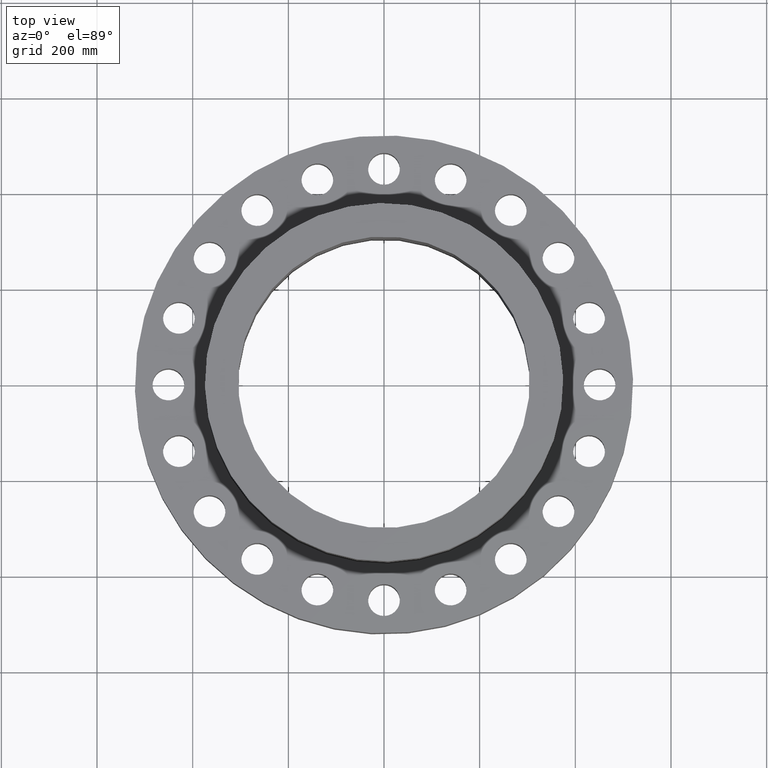
[diagram: clean part render]
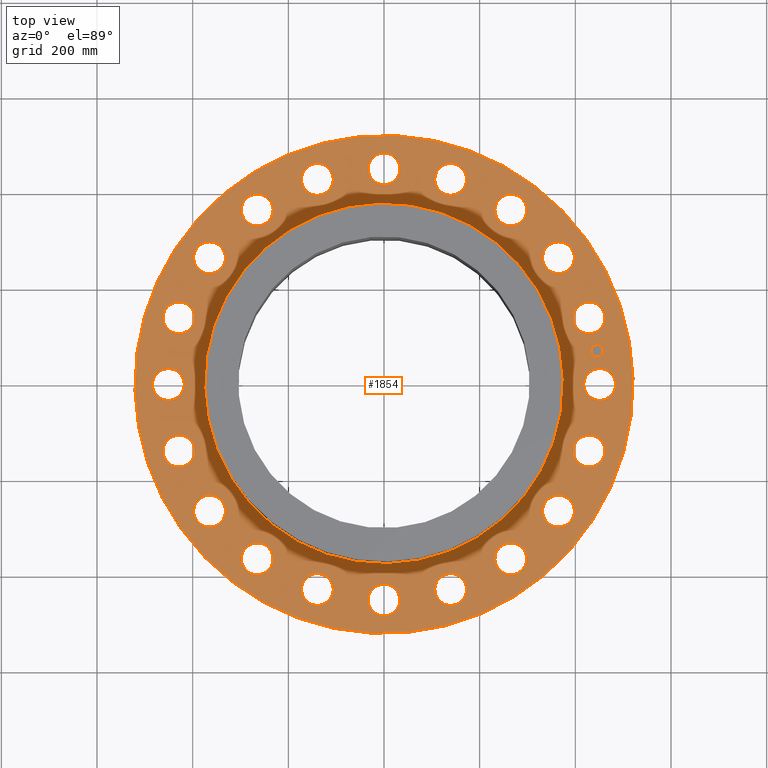
[diagram: same view with one face highlighted and labeled with its STEP entity id]
A machine part, top view. The second image highlights one B-rep face of the part: STEP entity #1854.
In plain terms, the highlighted planar face has unit normal (0, 0, -1).
Its self-contained STEP definition (entity closure, byte-faithful):
#51=AXIS2_PLACEMENT_3D('Circle Axis2P3D',#49,#50,$) ;
#470=AXIS2_PLACEMENT_3D('Circle Axis2P3D',#468,#469,$) ;
#494=AXIS2_PLACEMENT_3D('Circle Axis2P3D',#492,#493,$) ;
#513=AXIS2_PLACEMENT_3D('Circle Axis2P3D',#511,#512,$) ;
#530=AXIS2_PLACEMENT_3D('Circle Axis2P3D',#528,#529,$) ;
#565=AXIS2_PLACEMENT_3D('Circle Axis2P3D',#563,#564,$) ;
#940=AXIS2_PLACEMENT_3D('Circle Axis2P3D',#938,#939,$) ;
#959=AXIS2_PLACEMENT_3D('Circle Axis2P3D',#957,#958,$) ;
#983=AXIS2_PLACEMENT_3D('Circle Axis2P3D',#981,#982,$) ;
#1002=AXIS2_PLACEMENT_3D('Circle Axis2P3D',#1000,#1001,$) ;
#1026=AXIS2_PLACEMENT_3D('Circle Axis2P3D',#1024,#1025,$) ;
#1045=AXIS2_PLACEMENT_3D('Circle Axis2P3D',#1043,#1044,$) ;
#1069=AXIS2_PLACEMENT_3D('Circle Axis2P3D',#1067,#1068,$) ;
#1088=AXIS2_PLACEMENT_3D('Circle Axis2P3D',#1086,#1087,$) ;
#1112=AXIS2_PLACEMENT_3D('Circle Axis2P3D',#1110,#1111,$) ;
#1131=AXIS2_PLACEMENT_3D('Circle Axis2P3D',#1129,#1130,$) ;
#1155=AXIS2_PLACEMENT_3D('Circle Axis2P3D',#1153,#1154,$) ;
#1174=AXIS2_PLACEMENT_3D('Circle Axis2P3D',#1172,#1173,$) ;
#1198=AXIS2_PLACEMENT_3D('Circle Axis2P3D',#1196,#1197,$) ;
#1217=AXIS2_PLACEMENT_3D('Circle Axis2P3D',#1215,#1216,$) ;
#1241=AXIS2_PLACEMENT_3D('Circle Axis2P3D',#1239,#1240,$) ;
#1260=AXIS2_PLACEMENT_3D('Circle Axis2P3D',#1258,#1259,$) ;
#1284=AXIS2_PLACEMENT_3D('Circle Axis2P3D',#1282,#1283,$) ;
#1303=AXIS2_PLACEMENT_3D('Circle Axis2P3D',#1301,#1302,$) ;
#1327=AXIS2_PLACEMENT_3D('Circle Axis2P3D',#1325,#1326,$) ;
#1346=AXIS2_PLACEMENT_3D('Circle Axis2P3D',#1344,#1345,$) ;
#1370=AXIS2_PLACEMENT_3D('Circle Axis2P3D',#1368,#1369,$) ;
#1389=AXIS2_PLACEMENT_3D('Circle Axis2P3D',#1387,#1388,$) ;
#1413=AXIS2_PLACEMENT_3D('Circle Axis2P3D',#1411,#1412,$) ;
#1432=AXIS2_PLACEMENT_3D('Circle Axis2P3D',#1430,#1431,$) ;
#1456=AXIS2_PLACEMENT_3D('Circle Axis2P3D',#1454,#1455,$) ;
#1475=AXIS2_PLACEMENT_3D('Circle Axis2P3D',#1473,#1474,$) ;
#1499=AXIS2_PLACEMENT_3D('Circle Axis2P3D',#1497,#1498,$) ;
#1518=AXIS2_PLACEMENT_3D('Circle Axis2P3D',#1516,#1517,$) ;
#1542=AXIS2_PLACEMENT_3D('Circle Axis2P3D',#1540,#1541,$) ;
#1561=AXIS2_PLACEMENT_3D('Circle Axis2P3D',#1559,#1560,$) ;
#1585=AXIS2_PLACEMENT_3D('Circle Axis2P3D',#1583,#1584,$) ;
#1604=AXIS2_PLACEMENT_3D('Circle Axis2P3D',#1602,#1603,$) ;
#1628=AXIS2_PLACEMENT_3D('Circle Axis2P3D',#1626,#1627,$) ;
#1647=AXIS2_PLACEMENT_3D('Circle Axis2P3D',#1645,#1646,$) ;
#1671=AXIS2_PLACEMENT_3D('Circle Axis2P3D',#1669,#1670,$) ;
#1690=AXIS2_PLACEMENT_3D('Circle Axis2P3D',#1688,#1689,$) ;
#1714=AXIS2_PLACEMENT_3D('Circle Axis2P3D',#1712,#1713,$) ;
#1733=AXIS2_PLACEMENT_3D('Circle Axis2P3D',#1731,#1732,$) ;
#1746=AXIS2_PLACEMENT_3D('Plane Axis2P3D',#1743,#1744,#1745) ;
#1838=AXIS2_PLACEMENT_3D('Circle Axis2P3D',#1836,#1837,$) ;
#1847=AXIS2_PLACEMENT_3D('Circle Axis2P3D',#1845,#1846,$) ;
#44=CARTESIAN_POINT('Vertex',(16.600366844,-0.628047455574,5.50000000002)) ;
#49=CARTESIAN_POINT('Axis2P3D Location',(17.7500000001,0.,5.50000000002)) ;
#53=CARTESIAN_POINT('Vertex',(18.8996331562,0.628047455574,5.50000000002)) ;
#468=CARTESIAN_POINT('Axis2P3D Location',(17.7500000001,0.,5.50000000002)) ;
#489=CARTESIAN_POINT('Vertex',(-9.82822354143,-17.9904425188,5.50000000002)) ;
#492=CARTESIAN_POINT('Axis2P3D Location',(0.,0.,5.50000000002)) ;
#496=CARTESIAN_POINT('Vertex',(9.82822354143,17.9904425188,5.50000000002)) ;
#511=CARTESIAN_POINT('Axis2P3D Location',(0.,0.,5.50000000002)) ;
#528=CARTESIAN_POINT('Axis2P3D Location',(0.,0.,5.50000000002)) ;
#532=CARTESIAN_POINT('Vertex',(7.07152669444,12.9443427879,5.50000000002)) ;
#534=CARTESIAN_POINT('Vertex',(-7.07152669444,-12.9443427879,5.50000000002)) ;
#563=CARTESIAN_POINT('Axis2P3D Location',(0.,0.,5.50000000002)) ;
#935=CARTESIAN_POINT('Vertex',(15.5938097228,-5.72710409282,5.50000000002)) ;
#938=CARTESIAN_POINT('Axis2P3D Location',(16.8812531643,-5.48505165018,5.50000000002)) ;
#942=CARTESIAN_POINT('Vertex',(18.1686966058,-5.24299920754,5.50000000002)) ;
#957=CARTESIAN_POINT('Axis2P3D Location',(16.8812531643,-5.48505165018,5.50000000002)) ;
#978=CARTESIAN_POINT('Vertex',(13.0608218575,-10.2655518784,5.50000000002)) ;
#981=CARTESIAN_POINT('Axis2P3D Location',(14.3600516502,-10.4331882282,5.50000000002)) ;
#985=CARTESIAN_POINT('Vertex',(15.6592814429,-10.6008245781,5.50000000002)) ;
#1000=CARTESIAN_POINT('Axis2P3D Location',(14.3600516502,-10.4331882282,5.50000000002)) ;
#1021=CARTESIAN_POINT('Vertex',(9.24934974871,-13.7991359218,5.50000000002)) ;
#1024=CARTESIAN_POINT('Axis2P3D Location',(10.4331882282,-14.3600516502,5.50000000002)) ;
#1028=CARTESIAN_POINT('Vertex',(11.6170267078,-14.9209673787,5.50000000002)) ;
#1043=CARTESIAN_POINT('Axis2P3D Location',(10.4331882282,-14.3600516502,5.50000000002)) ;
#1064=CARTESIAN_POINT('Vertex',(4.53248684249,-15.9819643969,5.50000000002)) ;
#1067=CARTESIAN_POINT('Axis2P3D Location',(5.48505165018,-16.8812531643,5.50000000002)) ;
#1071=CARTESIAN_POINT('Vertex',(6.43761645787,-17.7805419317,5.50000000002)) ;
#1086=CARTESIAN_POINT('Axis2P3D Location',(5.48505165018,-16.8812531643,5.50000000002)) ;
#1107=CARTESIAN_POINT('Vertex',(-0.628047455574,-16.600366844,5.50000000002)) ;
#1110=CARTESIAN_POINT('Axis2P3D Location',(2.79023589527E-015,-17.7500000001,5.50000000002)) ;
#1114=CARTESIAN_POINT('Vertex',(0.628047455574,-18.8996331562,5.50000000002)) ;
#1129=CARTESIAN_POINT('Axis2P3D Location',(2.79023589527E-015,-17.7500000001,5.50000000002)) ;
#1150=CARTESIAN_POINT('Vertex',(-5.72710409282,-15.5938097228,5.50000000002)) ;
#1153=CARTESIAN_POINT('Axis2P3D Location',(-5.48505165018,-16.8812531643,5.50000000002)) ;
#1157=CARTESIAN_POINT('Vertex',(-5.24299920754,-18.1686966058,5.50000000002)) ;
#1172=CARTESIAN_POINT('Axis2P3D Location',(-5.48505165018,-16.8812531643,5.50000000002)) ;
#1193=CARTESIAN_POINT('Vertex',(-10.2655518784,-13.0608218575,5.50000000002)) ;
#1196=CARTESIAN_POINT('Axis2P3D Location',(-10.4331882282,-14.3600516502,5.50000000002)) ;
#1200=CARTESIAN_POINT('Vertex',(-10.6008245781,-15.6592814429,5.50000000002)) ;
#1215=CARTESIAN_POINT('Axis2P3D Location',(-10.4331882282,-14.3600516502,5.50000000002)) ;
#1236=CARTESIAN_POINT('Vertex',(-13.7991359218,-9.24934974871,5.50000000002)) ;
#1239=CARTESIAN_POINT('Axis2P3D Location',(-14.3600516502,-10.4331882282,5.50000000002)) ;
#1243=CARTESIAN_POINT('Vertex',(-14.9209673787,-11.6170267078,5.50000000002)) ;
#1258=CARTESIAN_POINT('Axis2P3D Location',(-14.3600516502,-10.4331882282,5.50000000002)) ;
#1279=CARTESIAN_POINT('Vertex',(-15.9819643969,-4.53248684249,5.50000000002)) ;
#1282=CARTESIAN_POINT('Axis2P3D Location',(-16.8812531643,-5.48505165018,5.50000000002)) ;
#1286=CARTESIAN_POINT('Vertex',(-17.7805419317,-6.43761645787,5.50000000002)) ;
#1301=CARTESIAN_POINT('Axis2P3D Location',(-16.8812531643,-5.48505165018,5.50000000002)) ;
#1322=CARTESIAN_POINT('Vertex',(-16.600366844,0.628047455574,5.50000000002)) ;
#1325=CARTESIAN_POINT('Axis2P3D Location',(-17.7500000001,-1.00563315434E-014,5.50000000002)) ;
#1329=CARTESIAN_POINT('Vertex',(-18.8996331562,-0.628047455574,5.50000000002)) ;
#1344=CARTESIAN_POINT('Axis2P3D Location',(-17.7500000001,-1.00563315434E-014,5.50000000002)) ;
#1365=CARTESIAN_POINT('Vertex',(-15.5938097228,5.72710409282,5.50000000002)) ;
#1368=CARTESIAN_POINT('Axis2P3D Location',(-16.8812531643,5.48505165018,5.50000000002)) ;
#1372=CARTESIAN_POINT('Vertex',(-18.1686966058,5.24299920754,5.50000000002)) ;
#1387=CARTESIAN_POINT('Axis2P3D Location',(-16.8812531643,5.48505165018,5.50000000002)) ;
#1408=CARTESIAN_POINT('Vertex',(-13.0608218575,10.2655518784,5.50000000002)) ;
#1411=CARTESIAN_POINT('Axis2P3D Location',(-14.3600516502,10.4331882282,5.50000000002)) ;
#1415=CARTESIAN_POINT('Vertex',(-15.6592814429,10.6008245781,5.50000000002)) ;
#1430=CARTESIAN_POINT('Axis2P3D Location',(-14.3600516502,10.4331882282,5.50000000002)) ;
#1451=CARTESIAN_POINT('Vertex',(-9.24934974871,13.7991359218,5.50000000002)) ;
#1454=CARTESIAN_POINT('Axis2P3D Location',(-10.4331882282,14.3600516502,5.50000000002)) ;
#1458=CARTESIAN_POINT('Vertex',(-11.6170267078,14.9209673787,5.50000000002)) ;
#1473=CARTESIAN_POINT('Axis2P3D Location',(-10.4331882282,14.3600516502,5.50000000002)) ;
#1494=CARTESIAN_POINT('Vertex',(-4.53248684249,15.9819643969,5.50000000002)) ;
#1497=CARTESIAN_POINT('Axis2P3D Location',(-5.48505165018,16.8812531643,5.50000000002)) ;
#1501=CARTESIAN_POINT('Vertex',(-6.43761645787,17.7805419317,5.50000000002)) ;
#1516=CARTESIAN_POINT('Axis2P3D Location',(-5.48505165018,16.8812531643,5.50000000002)) ;
#1537=CARTESIAN_POINT('Vertex',(0.628047455574,16.600366844,5.50000000002)) ;
#1540=CARTESIAN_POINT('Axis2P3D Location',(-1.90257890525E-014,17.7500000001,5.50000000002)) ;
#1544=CARTESIAN_POINT('Vertex',(-0.628047455574,18.8996331562,5.50000000002)) ;
#1559=CARTESIAN_POINT('Axis2P3D Location',(-1.90257890525E-014,17.7500000001,5.50000000002)) ;
#1580=CARTESIAN_POINT('Vertex',(5.72710409282,15.5938097228,5.50000000002)) ;
#1583=CARTESIAN_POINT('Axis2P3D Location',(5.48505165018,16.8812531643,5.50000000002)) ;
#1587=CARTESIAN_POINT('Vertex',(5.24299920754,18.1686966058,5.50000000002)) ;
#1602=CARTESIAN_POINT('Axis2P3D Location',(5.48505165018,16.8812531643,5.50000000002)) ;
#1623=CARTESIAN_POINT('Vertex',(10.2655518784,13.0608218575,5.50000000002)) ;
#1626=CARTESIAN_POINT('Axis2P3D Location',(10.4331882282,14.3600516502,5.50000000002)) ;
#1630=CARTESIAN_POINT('Vertex',(10.6008245781,15.6592814429,5.50000000002)) ;
#1645=CARTESIAN_POINT('Axis2P3D Location',(10.4331882282,14.3600516502,5.50000000002)) ;
#1666=CARTESIAN_POINT('Vertex',(13.7991359218,9.24934974871,5.50000000002)) ;
#1669=CARTESIAN_POINT('Axis2P3D Location',(14.3600516502,10.4331882282,5.50000000002)) ;
#1673=CARTESIAN_POINT('Vertex',(14.9209673787,11.6170267078,5.50000000002)) ;
#1688=CARTESIAN_POINT('Axis2P3D Location',(14.3600516502,10.4331882282,5.50000000002)) ;
#1709=CARTESIAN_POINT('Vertex',(15.9819643969,4.53248684249,5.50000000002)) ;
#1712=CARTESIAN_POINT('Axis2P3D Location',(16.8812531643,5.48505165018,5.50000000002)) ;
#1716=CARTESIAN_POINT('Vertex',(17.7805419317,6.43761645787,5.50000000002)) ;
#1731=CARTESIAN_POINT('Axis2P3D Location',(16.8812531643,5.48505165018,5.50000000002)) ;
#1743=CARTESIAN_POINT('Axis2P3D Location',(0.,20.5000000001,5.50000000002)) ;
#1836=CARTESIAN_POINT('Axis2P3D Location',(17.5314680456,2.77671175448,5.50000000002)) ;
#1840=CARTESIAN_POINT('Vertex',(17.6096852774,2.28286758911,5.50000000002)) ;
#1842=CARTESIAN_POINT('Vertex',(17.4532508139,3.27055591984,5.50000000002)) ;
#1845=CARTESIAN_POINT('Axis2P3D Location',(17.5314680456,2.77671175448,5.50000000002)) ;
#50=DIRECTION('Axis2P3D Direction',(0.,-0.,0.0393700787402)) ;
#469=DIRECTION('Axis2P3D Direction',(0.,-0.,0.0393700787402)) ;
#493=DIRECTION('Axis2P3D Direction',(0.,0.,-0.0393700787402)) ;
#512=DIRECTION('Axis2P3D Direction',(0.,0.,-0.0393700787402)) ;
#529=DIRECTION('Axis2P3D Direction',(0.,0.,-0.0393700787402)) ;
#564=DIRECTION('Axis2P3D Direction',(0.,0.,-0.0393700787402)) ;
#939=DIRECTION('Axis2P3D Direction',(-0.,0.,0.0393700787402)) ;
#958=DIRECTION('Axis2P3D Direction',(-0.,0.,0.0393700787402)) ;
#982=DIRECTION('Axis2P3D Direction',(-0.,0.,0.0393700787402)) ;
#1001=DIRECTION('Axis2P3D Direction',(-0.,0.,0.0393700787402)) ;
#1025=DIRECTION('Axis2P3D Direction',(-0.,0.,0.0393700787402)) ;
#1044=DIRECTION('Axis2P3D Direction',(-0.,0.,0.0393700787402)) ;
#1068=DIRECTION('Axis2P3D Direction',(-0.,0.,0.0393700787402)) ;
#1087=DIRECTION('Axis2P3D Direction',(-0.,0.,0.0393700787402)) ;
#1111=DIRECTION('Axis2P3D Direction',(-0.,0.,0.0393700787402)) ;
#1130=DIRECTION('Axis2P3D Direction',(-0.,0.,0.0393700787402)) ;
#1154=DIRECTION('Axis2P3D Direction',(0.,0.,0.0393700787402)) ;
#1173=DIRECTION('Axis2P3D Direction',(0.,0.,0.0393700787402)) ;
#1197=DIRECTION('Axis2P3D Direction',(0.,0.,0.0393700787402)) ;
#1216=DIRECTION('Axis2P3D Direction',(0.,0.,0.0393700787402)) ;
#1240=DIRECTION('Axis2P3D Direction',(0.,0.,0.0393700787402)) ;
#1259=DIRECTION('Axis2P3D Direction',(0.,0.,0.0393700787402)) ;
#1283=DIRECTION('Axis2P3D Direction',(0.,0.,0.0393700787402)) ;
#1302=DIRECTION('Axis2P3D Direction',(0.,0.,0.0393700787402)) ;
#1326=DIRECTION('Axis2P3D Direction',(0.,0.,0.0393700787402)) ;
#1345=DIRECTION('Axis2P3D Direction',(0.,0.,0.0393700787402)) ;
#1369=DIRECTION('Axis2P3D Direction',(0.,0.,0.0393700787402)) ;
#1388=DIRECTION('Axis2P3D Direction',(0.,0.,0.0393700787402)) ;
#1412=DIRECTION('Axis2P3D Direction',(0.,0.,0.0393700787402)) ;
#1431=DIRECTION('Axis2P3D Direction',(0.,0.,0.0393700787402)) ;
#1455=DIRECTION('Axis2P3D Direction',(0.,0.,0.0393700787402)) ;
#1474=DIRECTION('Axis2P3D Direction',(0.,0.,0.0393700787402)) ;
#1498=DIRECTION('Axis2P3D Direction',(0.,0.,0.0393700787402)) ;
#1517=DIRECTION('Axis2P3D Direction',(0.,0.,0.0393700787402)) ;
#1541=DIRECTION('Axis2P3D Direction',(0.,0.,0.0393700787402)) ;
#1560=DIRECTION('Axis2P3D Direction',(0.,0.,0.0393700787402)) ;
#1584=DIRECTION('Axis2P3D Direction',(0.,-0.,0.0393700787402)) ;
#1603=DIRECTION('Axis2P3D Direction',(0.,-0.,0.0393700787402)) ;
#1627=DIRECTION('Axis2P3D Direction',(0.,-0.,0.0393700787402)) ;
#1646=DIRECTION('Axis2P3D Direction',(0.,-0.,0.0393700787402)) ;
#1670=DIRECTION('Axis2P3D Direction',(0.,-0.,0.0393700787402)) ;
#1689=DIRECTION('Axis2P3D Direction',(0.,-0.,0.0393700787402)) ;
#1713=DIRECTION('Axis2P3D Direction',(0.,-0.,0.0393700787402)) ;
#1732=DIRECTION('Axis2P3D Direction',(0.,-0.,0.0393700787402)) ;
#1744=DIRECTION('Axis2P3D Direction',(0.,0.,-0.0393700787402)) ;
#1745=DIRECTION('Axis2P3D XDirection',(0.0393700787402,0.,0.)) ;
#1837=DIRECTION('Axis2P3D Direction',(0.,0.,-0.0393700787402)) ;
#1846=DIRECTION('Axis2P3D Direction',(0.,0.,-0.0393700787402)) ;
#1749=ORIENTED_EDGE('',*,*,#515,.F.) ;
#1750=ORIENTED_EDGE('',*,*,#498,.F.) ;
#1753=ORIENTED_EDGE('',*,*,#55,.T.) ;
#1754=ORIENTED_EDGE('',*,*,#472,.T.) ;
#1757=ORIENTED_EDGE('',*,*,#567,.T.) ;
#1758=ORIENTED_EDGE('',*,*,#536,.T.) ;
#1761=ORIENTED_EDGE('',*,*,#961,.T.) ;
#1762=ORIENTED_EDGE('',*,*,#944,.T.) ;
#1765=ORIENTED_EDGE('',*,*,#1004,.T.) ;
#1766=ORIENTED_EDGE('',*,*,#987,.T.) ;
#1769=ORIENTED_EDGE('',*,*,#1047,.T.) ;
#1770=ORIENTED_EDGE('',*,*,#1030,.T.) ;
#1773=ORIENTED_EDGE('',*,*,#1090,.T.) ;
#1774=ORIENTED_EDGE('',*,*,#1073,.T.) ;
#1777=ORIENTED_EDGE('',*,*,#1133,.T.) ;
#1778=ORIENTED_EDGE('',*,*,#1116,.T.) ;
#1781=ORIENTED_EDGE('',*,*,#1176,.T.) ;
#1782=ORIENTED_EDGE('',*,*,#1159,.T.) ;
#1785=ORIENTED_EDGE('',*,*,#1219,.T.) ;
#1786=ORIENTED_EDGE('',*,*,#1202,.T.) ;
#1789=ORIENTED_EDGE('',*,*,#1262,.T.) ;
#1790=ORIENTED_EDGE('',*,*,#1245,.T.) ;
#1793=ORIENTED_EDGE('',*,*,#1305,.T.) ;
#1794=ORIENTED_EDGE('',*,*,#1288,.T.) ;
#1797=ORIENTED_EDGE('',*,*,#1348,.T.) ;
#1798=ORIENTED_EDGE('',*,*,#1331,.T.) ;
#1801=ORIENTED_EDGE('',*,*,#1391,.T.) ;
#1802=ORIENTED_EDGE('',*,*,#1374,.T.) ;
#1805=ORIENTED_EDGE('',*,*,#1434,.T.) ;
#1806=ORIENTED_EDGE('',*,*,#1417,.T.) ;
#1809=ORIENTED_EDGE('',*,*,#1477,.T.) ;
#1810=ORIENTED_EDGE('',*,*,#1460,.T.) ;
#1813=ORIENTED_EDGE('',*,*,#1520,.T.) ;
#1814=ORIENTED_EDGE('',*,*,#1503,.T.) ;
#1817=ORIENTED_EDGE('',*,*,#1563,.T.) ;
#1818=ORIENTED_EDGE('',*,*,#1546,.T.) ;
#1821=ORIENTED_EDGE('',*,*,#1606,.T.) ;
#1822=ORIENTED_EDGE('',*,*,#1589,.T.) ;
#1825=ORIENTED_EDGE('',*,*,#1649,.T.) ;
#1826=ORIENTED_EDGE('',*,*,#1632,.T.) ;
#1829=ORIENTED_EDGE('',*,*,#1692,.T.) ;
#1830=ORIENTED_EDGE('',*,*,#1675,.T.) ;
#1833=ORIENTED_EDGE('',*,*,#1735,.T.) ;
#1834=ORIENTED_EDGE('',*,*,#1718,.T.) ;
#1851=ORIENTED_EDGE('',*,*,#1844,.F.) ;
#1852=ORIENTED_EDGE('',*,*,#1849,.F.) ;
#1755=FACE_BOUND('',#1752,.T.) ;
#1759=FACE_BOUND('',#1756,.T.) ;
#1763=FACE_BOUND('',#1760,.T.) ;
#1767=FACE_BOUND('',#1764,.T.) ;
#1771=FACE_BOUND('',#1768,.T.) ;
#1775=FACE_BOUND('',#1772,.T.) ;
#1779=FACE_BOUND('',#1776,.T.) ;
#1783=FACE_BOUND('',#1780,.T.) ;
#1787=FACE_BOUND('',#1784,.T.) ;
#1791=FACE_BOUND('',#1788,.T.) ;
#1795=FACE_BOUND('',#1792,.T.) ;
#1799=FACE_BOUND('',#1796,.T.) ;
#1803=FACE_BOUND('',#1800,.T.) ;
#1807=FACE_BOUND('',#1804,.T.) ;
#1811=FACE_BOUND('',#1808,.T.) ;
#1815=FACE_BOUND('',#1812,.T.) ;
#1819=FACE_BOUND('',#1816,.T.) ;
#1823=FACE_BOUND('',#1820,.T.) ;
#1827=FACE_BOUND('',#1824,.T.) ;
#1831=FACE_BOUND('',#1828,.T.) ;
#1835=FACE_BOUND('',#1832,.T.) ;
#1853=FACE_BOUND('',#1850,.T.) ;
#1854=ADVANCED_FACE('PartBody',(#1751,#1755,#1759,#1763,#1767,#1771,#1775,#1779,#1783,#1787,#1791,#1795,#1799,#1803,#1807,#1811,#1815,#1819,#1823,#1827,#1831,#1835,#1853),#1747,.F.) ;
#52=CIRCLE('generated circle',#51,1.31000000001) ;
#471=CIRCLE('generated circle',#470,1.31000000001) ;
#495=CIRCLE('generated circle',#494,20.5000000001) ;
#514=CIRCLE('generated circle',#513,20.5000000001) ;
#531=CIRCLE('generated circle',#530,14.7500000001) ;
#566=CIRCLE('generated circle',#565,14.7500000001) ;
#941=CIRCLE('generated circle',#940,1.31000000001) ;
#960=CIRCLE('generated circle',#959,1.31000000001) ;
#984=CIRCLE('generated circle',#983,1.31000000001) ;
#1003=CIRCLE('generated circle',#1002,1.31000000001) ;
#1027=CIRCLE('generated circle',#1026,1.31000000001) ;
#1046=CIRCLE('generated circle',#1045,1.31000000001) ;
#1070=CIRCLE('generated circle',#1069,1.31000000001) ;
#1089=CIRCLE('generated circle',#1088,1.31000000001) ;
#1113=CIRCLE('generated circle',#1112,1.31000000001) ;
#1132=CIRCLE('generated circle',#1131,1.31000000001) ;
#1156=CIRCLE('generated circle',#1155,1.31000000001) ;
#1175=CIRCLE('generated circle',#1174,1.31000000001) ;
#1199=CIRCLE('generated circle',#1198,1.31000000001) ;
#1218=CIRCLE('generated circle',#1217,1.31000000001) ;
#1242=CIRCLE('generated circle',#1241,1.31000000001) ;
#1261=CIRCLE('generated circle',#1260,1.31000000001) ;
#1285=CIRCLE('generated circle',#1284,1.31000000001) ;
#1304=CIRCLE('generated circle',#1303,1.31000000001) ;
#1328=CIRCLE('generated circle',#1327,1.31000000001) ;
#1347=CIRCLE('generated circle',#1346,1.31000000001) ;
#1371=CIRCLE('generated circle',#1370,1.31000000001) ;
#1390=CIRCLE('generated circle',#1389,1.31000000001) ;
#1414=CIRCLE('generated circle',#1413,1.31000000001) ;
#1433=CIRCLE('generated circle',#1432,1.31000000001) ;
#1457=CIRCLE('generated circle',#1456,1.31000000001) ;
#1476=CIRCLE('generated circle',#1475,1.31000000001) ;
#1500=CIRCLE('generated circle',#1499,1.31000000001) ;
#1519=CIRCLE('generated circle',#1518,1.31000000001) ;
#1543=CIRCLE('generated circle',#1542,1.31000000001) ;
#1562=CIRCLE('generated circle',#1561,1.31000000001) ;
#1586=CIRCLE('generated circle',#1585,1.31000000001) ;
#1605=CIRCLE('generated circle',#1604,1.31000000001) ;
#1629=CIRCLE('generated circle',#1628,1.31000000001) ;
#1648=CIRCLE('generated circle',#1647,1.31000000001) ;
#1672=CIRCLE('generated circle',#1671,1.31000000001) ;
#1691=CIRCLE('generated circle',#1690,1.31000000001) ;
#1715=CIRCLE('generated circle',#1714,1.31000000001) ;
#1734=CIRCLE('generated circle',#1733,1.31000000001) ;
#1839=CIRCLE('generated circle',#1838,0.499999995002) ;
#1848=CIRCLE('generated circle',#1847,0.499999995002) ;
#55=EDGE_CURVE('',#54,#45,#52,.F.) ;
#472=EDGE_CURVE('',#45,#54,#471,.F.) ;
#498=EDGE_CURVE('',#490,#497,#495,.T.) ;
#515=EDGE_CURVE('',#497,#490,#514,.T.) ;
#536=EDGE_CURVE('',#533,#535,#531,.T.) ;
#567=EDGE_CURVE('',#535,#533,#566,.T.) ;
#944=EDGE_CURVE('',#943,#936,#941,.F.) ;
#961=EDGE_CURVE('',#936,#943,#960,.F.) ;
#987=EDGE_CURVE('',#986,#979,#984,.F.) ;
#1004=EDGE_CURVE('',#979,#986,#1003,.F.) ;
#1030=EDGE_CURVE('',#1029,#1022,#1027,.F.) ;
#1047=EDGE_CURVE('',#1022,#1029,#1046,.F.) ;
#1073=EDGE_CURVE('',#1072,#1065,#1070,.F.) ;
#1090=EDGE_CURVE('',#1065,#1072,#1089,.F.) ;
#1116=EDGE_CURVE('',#1115,#1108,#1113,.F.) ;
#1133=EDGE_CURVE('',#1108,#1115,#1132,.F.) ;
#1159=EDGE_CURVE('',#1158,#1151,#1156,.F.) ;
#1176=EDGE_CURVE('',#1151,#1158,#1175,.F.) ;
#1202=EDGE_CURVE('',#1201,#1194,#1199,.F.) ;
#1219=EDGE_CURVE('',#1194,#1201,#1218,.F.) ;
#1245=EDGE_CURVE('',#1244,#1237,#1242,.F.) ;
#1262=EDGE_CURVE('',#1237,#1244,#1261,.F.) ;
#1288=EDGE_CURVE('',#1287,#1280,#1285,.F.) ;
#1305=EDGE_CURVE('',#1280,#1287,#1304,.F.) ;
#1331=EDGE_CURVE('',#1330,#1323,#1328,.F.) ;
#1348=EDGE_CURVE('',#1323,#1330,#1347,.F.) ;
#1374=EDGE_CURVE('',#1373,#1366,#1371,.F.) ;
#1391=EDGE_CURVE('',#1366,#1373,#1390,.F.) ;
#1417=EDGE_CURVE('',#1416,#1409,#1414,.F.) ;
#1434=EDGE_CURVE('',#1409,#1416,#1433,.F.) ;
#1460=EDGE_CURVE('',#1459,#1452,#1457,.F.) ;
#1477=EDGE_CURVE('',#1452,#1459,#1476,.F.) ;
#1503=EDGE_CURVE('',#1502,#1495,#1500,.F.) ;
#1520=EDGE_CURVE('',#1495,#1502,#1519,.F.) ;
#1546=EDGE_CURVE('',#1545,#1538,#1543,.F.) ;
#1563=EDGE_CURVE('',#1538,#1545,#1562,.F.) ;
#1589=EDGE_CURVE('',#1588,#1581,#1586,.F.) ;
#1606=EDGE_CURVE('',#1581,#1588,#1605,.F.) ;
#1632=EDGE_CURVE('',#1631,#1624,#1629,.F.) ;
#1649=EDGE_CURVE('',#1624,#1631,#1648,.F.) ;
#1675=EDGE_CURVE('',#1674,#1667,#1672,.F.) ;
#1692=EDGE_CURVE('',#1667,#1674,#1691,.F.) ;
#1718=EDGE_CURVE('',#1717,#1710,#1715,.F.) ;
#1735=EDGE_CURVE('',#1710,#1717,#1734,.F.) ;
#1844=EDGE_CURVE('',#1841,#1843,#1839,.F.) ;
#1849=EDGE_CURVE('',#1843,#1841,#1848,.F.) ;
#1748=EDGE_LOOP('',(#1749,#1750)) ;
#1752=EDGE_LOOP('',(#1753,#1754)) ;
#1756=EDGE_LOOP('',(#1757,#1758)) ;
#1760=EDGE_LOOP('',(#1761,#1762)) ;
#1764=EDGE_LOOP('',(#1765,#1766)) ;
#1768=EDGE_LOOP('',(#1769,#1770)) ;
#1772=EDGE_LOOP('',(#1773,#1774)) ;
#1776=EDGE_LOOP('',(#1777,#1778)) ;
#1780=EDGE_LOOP('',(#1781,#1782)) ;
#1784=EDGE_LOOP('',(#1785,#1786)) ;
#1788=EDGE_LOOP('',(#1789,#1790)) ;
#1792=EDGE_LOOP('',(#1793,#1794)) ;
#1796=EDGE_LOOP('',(#1797,#1798)) ;
#1800=EDGE_LOOP('',(#1801,#1802)) ;
#1804=EDGE_LOOP('',(#1805,#1806)) ;
#1808=EDGE_LOOP('',(#1809,#1810)) ;
#1812=EDGE_LOOP('',(#1813,#1814)) ;
#1816=EDGE_LOOP('',(#1817,#1818)) ;
#1820=EDGE_LOOP('',(#1821,#1822)) ;
#1824=EDGE_LOOP('',(#1825,#1826)) ;
#1828=EDGE_LOOP('',(#1829,#1830)) ;
#1832=EDGE_LOOP('',(#1833,#1834)) ;
#1850=EDGE_LOOP('',(#1851,#1852)) ;
#1751=FACE_OUTER_BOUND('',#1748,.T.) ;
#1747=PLANE('',#1746) ;
#45=VERTEX_POINT('',#44) ;
#54=VERTEX_POINT('',#53) ;
#490=VERTEX_POINT('',#489) ;
#497=VERTEX_POINT('',#496) ;
#533=VERTEX_POINT('',#532) ;
#535=VERTEX_POINT('',#534) ;
#936=VERTEX_POINT('',#935) ;
#943=VERTEX_POINT('',#942) ;
#979=VERTEX_POINT('',#978) ;
#986=VERTEX_POINT('',#985) ;
#1022=VERTEX_POINT('',#1021) ;
#1029=VERTEX_POINT('',#1028) ;
#1065=VERTEX_POINT('',#1064) ;
#1072=VERTEX_POINT('',#1071) ;
#1108=VERTEX_POINT('',#1107) ;
#1115=VERTEX_POINT('',#1114) ;
#1151=VERTEX_POINT('',#1150) ;
#1158=VERTEX_POINT('',#1157) ;
#1194=VERTEX_POINT('',#1193) ;
#1201=VERTEX_POINT('',#1200) ;
#1237=VERTEX_POINT('',#1236) ;
#1244=VERTEX_POINT('',#1243) ;
#1280=VERTEX_POINT('',#1279) ;
#1287=VERTEX_POINT('',#1286) ;
#1323=VERTEX_POINT('',#1322) ;
#1330=VERTEX_POINT('',#1329) ;
#1366=VERTEX_POINT('',#1365) ;
#1373=VERTEX_POINT('',#1372) ;
#1409=VERTEX_POINT('',#1408) ;
#1416=VERTEX_POINT('',#1415) ;
#1452=VERTEX_POINT('',#1451) ;
#1459=VERTEX_POINT('',#1458) ;
#1495=VERTEX_POINT('',#1494) ;
#1502=VERTEX_POINT('',#1501) ;
#1538=VERTEX_POINT('',#1537) ;
#1545=VERTEX_POINT('',#1544) ;
#1581=VERTEX_POINT('',#1580) ;
#1588=VERTEX_POINT('',#1587) ;
#1624=VERTEX_POINT('',#1623) ;
#1631=VERTEX_POINT('',#1630) ;
#1667=VERTEX_POINT('',#1666) ;
#1674=VERTEX_POINT('',#1673) ;
#1710=VERTEX_POINT('',#1709) ;
#1717=VERTEX_POINT('',#1716) ;
#1841=VERTEX_POINT('',#1840) ;
#1843=VERTEX_POINT('',#1842) ;